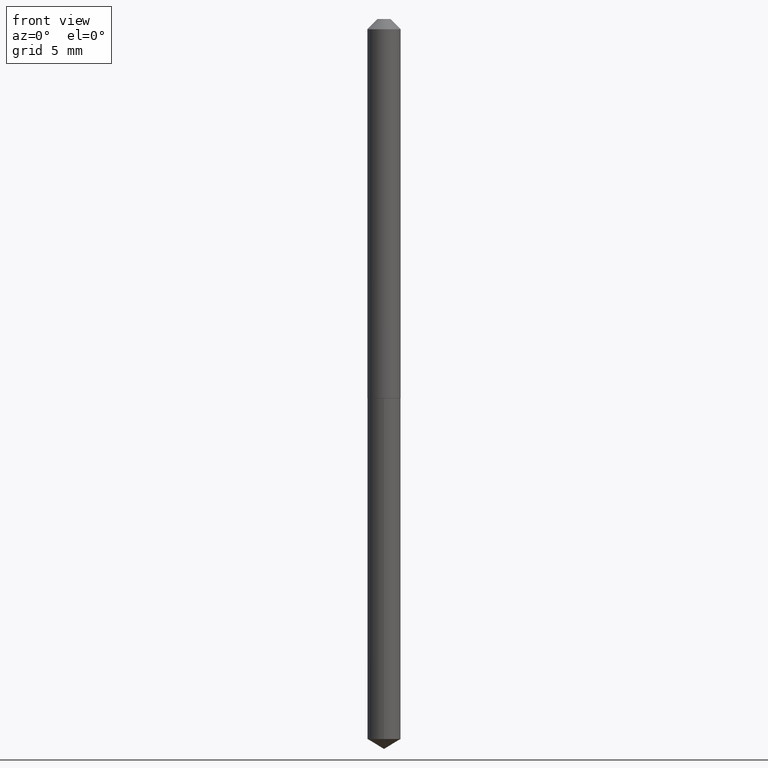
[diagram: clean part render]
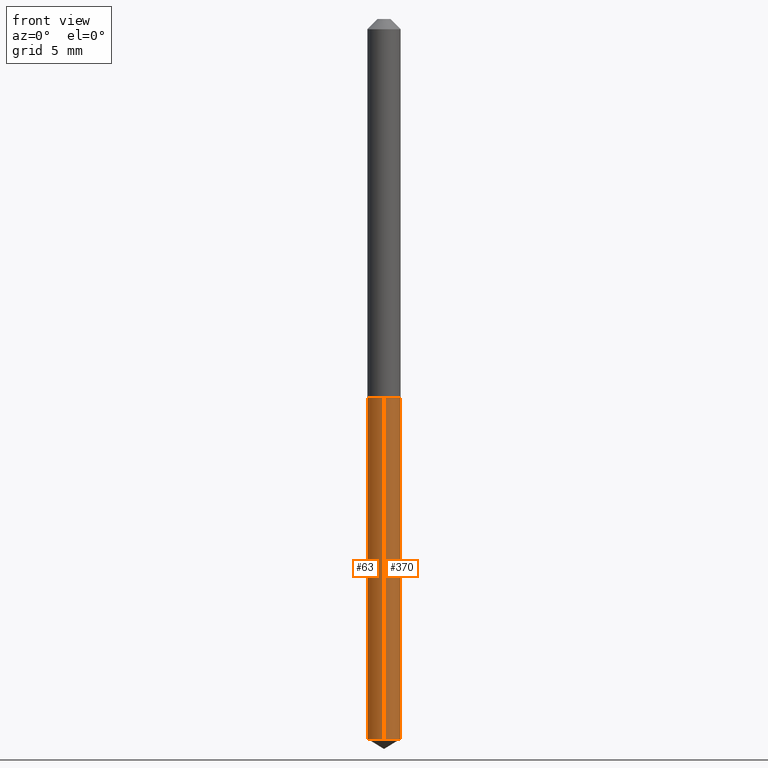
[diagram: same view with one multi-face feature highlighted, each face labeled with its STEP entity id]
A machine part, front view. The highlighted faces form ONE feature: a constant-radius fillet chain: 2 tangent blend faces with common blend radius 1.3005 mm. The faces share edges in the B-rep.
Their STEP definitions:
[1] entity #63 (Cylinder):
#1 = DIRECTION ( 'NONE',  ( -2.445446714774009337E-29, 3.491512975001244888E-15, 1.000000000000000000 ) ) ;
#7 = FACE_OUTER_BOUND ( 'NONE', #379, .T. ) ;
#33 = VECTOR ( 'NONE', #35, 39.37007874015748143 ) ;
#35 = DIRECTION ( 'NONE',  ( -2.445446714774009617E-29, 3.491512975001244888E-15, 1.000000000000000000 ) ) ;
#44 = CARTESIAN_POINT ( 'NONE',  ( -3.575276890975083509E-16, -0.05120000000000407558, -1.165399999999999769 ) ) ;
#51 = VERTEX_POINT ( 'NONE', #388 ) ;
#55 = CARTESIAN_POINT ( 'NONE',  ( 2.849949346728157749E-29, -4.068972352287801446E-15, -1.165399999999999991 ) ) ;
#57 = VECTOR ( 'NONE', #64, 39.37007874015748143 ) ;
#59 = EDGE_CURVE ( 'NONE', #133, #110, #319, .T. ) ;
#63 = ADVANCED_FACE ( 'NONE', ( #7 ), #266, .T. ) ;
#64 = DIRECTION ( 'NONE',  ( -2.445446714774009617E-29, 3.491512975001244888E-15, 1.000000000000000000 ) ) ;
#65 = CARTESIAN_POINT ( 'NONE',  ( 3.637978807091998102E-16, 0.05119999999999593626, -1.165399999999999991 ) ) ;
#94 = CARTESIAN_POINT ( 'NONE',  ( 5.412620839460775275E-29, -7.727854270869542794E-15, -2.213335936305789176 ) ) ;
#105 = VERTEX_POINT ( 'NONE', #44 ) ;
#106 = AXIS2_PLACEMENT_3D ( 'NONE', #55, #181, #294 ) ;
#107 = ORIENTED_EDGE ( 'NONE', *, *, #59, .F. ) ;
#110 = VERTEX_POINT ( 'NONE', #161 ) ;
#114 = DIRECTION ( 'NONE',  ( -6.982962677686265133E-15, -1.000000000000000000, 2.667820306312756424E-15 ) ) ;
#133 = VERTEX_POINT ( 'NONE', #278 ) ;
#147 = AXIS2_PLACEMENT_3D ( 'NONE', #259, #1, #114 ) ;
#161 = CARTESIAN_POINT ( 'NONE',  ( 3.637978807092255468E-16, 0.05119999999999593626, -1.165399999999999991 ) ) ;
#162 = ORIENTED_EDGE ( 'NONE', *, *, #265, .T. ) ;
#177 = LINE ( 'NONE', #293, #33 ) ;
#181 = DIRECTION ( 'NONE',  ( -2.445446714774009337E-29, 3.491512975001244888E-15, 1.000000000000000000 ) ) ;
#188 = EDGE_CURVE ( 'NONE', #110, #105, #320, .T. ) ;
#193 = EDGE_CURVE ( 'NONE', #51, #105, #177, .T. ) ;
#194 = ORIENTED_EDGE ( 'NONE', *, *, #188, .F. ) ;
#227 = ORIENTED_EDGE ( 'NONE', *, *, #193, .T. ) ;
#242 = DIRECTION ( 'NONE',  ( -6.982962677686265133E-15, -1.000000000000000000, 5.335640612625512847E-15 ) ) ;
#259 = CARTESIAN_POINT ( 'NONE',  ( 2.849949346728157749E-29, -4.068972352287801446E-15, -1.165399999999999991 ) ) ;
#265 = EDGE_CURVE ( 'NONE', #133, #51, #304, .T. ) ;
#266 = CYLINDRICAL_SURFACE ( 'NONE', #106, 0.05120000000000000939 ) ;
#278 = CARTESIAN_POINT ( 'NONE',  ( 3.637978807092252510E-16, 0.05119999999999226559, -2.213335936305789620 ) ) ;
#293 = CARTESIAN_POINT ( 'NONE',  ( -3.575276890975083509E-16, -0.05120000000000407558, -1.165399999999999769 ) ) ;
#294 = DIRECTION ( 'NONE',  ( -6.982962677686265133E-15, -1.000000000000000000, 2.667820306312756424E-15 ) ) ;
#304 = CIRCLE ( 'NONE', #374, 0.05120000000000000939 ) ;
#319 = LINE ( 'NONE', #65, #57 ) ;
#320 = CIRCLE ( 'NONE', #147, 0.05120000000000000939 ) ;
#366 = DIRECTION ( 'NONE',  ( -2.445446714774009337E-29, 3.491512975001244888E-15, 1.000000000000000000 ) ) ;
#374 = AXIS2_PLACEMENT_3D ( 'NONE', #94, #366, #242 ) ;
#379 = EDGE_LOOP ( 'NONE', ( #107, #162, #227, #194 ) ) ;
#388 = CARTESIAN_POINT ( 'NONE',  ( -3.575276890974827129E-16, -0.05120000000000772544, -2.213335936305789176 ) ) ;
[2] entity #370 (Cylinder):
#26 = ORIENTED_EDGE ( 'NONE', *, *, #385, .T. ) ;
#32 = DIRECTION ( 'NONE',  ( -2.445446714774009337E-29, 3.491512975001244888E-15, 1.000000000000000000 ) ) ;
#33 = VECTOR ( 'NONE', #35, 39.37007874015748143 ) ;
#35 = DIRECTION ( 'NONE',  ( -2.445446714774009617E-29, 3.491512975001244888E-15, 1.000000000000000000 ) ) ;
#39 = DIRECTION ( 'NONE',  ( -2.445446714774009337E-29, 3.491512975001244888E-15, 1.000000000000000000 ) ) ;
#44 = CARTESIAN_POINT ( 'NONE',  ( -3.575276890975083509E-16, -0.05120000000000407558, -1.165399999999999769 ) ) ;
#46 = AXIS2_PLACEMENT_3D ( 'NONE', #206, #202, #325 ) ;
#49 = ORIENTED_EDGE ( 'NONE', *, *, #104, .F. ) ;
#51 = VERTEX_POINT ( 'NONE', #388 ) ;
#57 = VECTOR ( 'NONE', #64, 39.37007874015748143 ) ;
#59 = EDGE_CURVE ( 'NONE', #133, #110, #319, .T. ) ;
#64 = DIRECTION ( 'NONE',  ( -2.445446714774009617E-29, 3.491512975001244888E-15, 1.000000000000000000 ) ) ;
#65 = CARTESIAN_POINT ( 'NONE',  ( 3.637978807091998102E-16, 0.05119999999999593626, -1.165399999999999991 ) ) ;
#80 = EDGE_LOOP ( 'NONE', ( #26, #249, #49, #349 ) ) ;
#95 = CIRCLE ( 'NONE', #316, 0.05120000000000000939 ) ;
#96 = DIRECTION ( 'NONE',  ( -6.982962677686265133E-15, -1.000000000000000000, 5.335640612625512847E-15 ) ) ;
#104 = EDGE_CURVE ( 'NONE', #105, #110, #95, .T. ) ;
#105 = VERTEX_POINT ( 'NONE', #44 ) ;
#110 = VERTEX_POINT ( 'NONE', #161 ) ;
#113 = CYLINDRICAL_SURFACE ( 'NONE', #46, 0.05120000000000000939 ) ;
#129 = AXIS2_PLACEMENT_3D ( 'NONE', #301, #39, #96 ) ;
#133 = VERTEX_POINT ( 'NONE', #278 ) ;
#161 = CARTESIAN_POINT ( 'NONE',  ( 3.637978807092255468E-16, 0.05119999999999593626, -1.165399999999999991 ) ) ;
#163 = DIRECTION ( 'NONE',  ( -6.982962677686265133E-15, -1.000000000000000000, 2.667820306312756424E-15 ) ) ;
#177 = LINE ( 'NONE', #293, #33 ) ;
#193 = EDGE_CURVE ( 'NONE', #51, #105, #177, .T. ) ;
#202 = DIRECTION ( 'NONE',  ( -2.445446714774009337E-29, 3.491512975001244888E-15, 1.000000000000000000 ) ) ;
#206 = CARTESIAN_POINT ( 'NONE',  ( 2.849949346728157749E-29, -4.068972352287801446E-15, -1.165399999999999991 ) ) ;
#234 = CIRCLE ( 'NONE', #129, 0.05120000000000000939 ) ;
#249 = ORIENTED_EDGE ( 'NONE', *, *, #59, .T. ) ;
#278 = CARTESIAN_POINT ( 'NONE',  ( 3.637978807092252510E-16, 0.05119999999999226559, -2.213335936305789620 ) ) ;
#289 = CARTESIAN_POINT ( 'NONE',  ( 2.849949346728157749E-29, -4.068972352287801446E-15, -1.165399999999999991 ) ) ;
#293 = CARTESIAN_POINT ( 'NONE',  ( -3.575276890975083509E-16, -0.05120000000000407558, -1.165399999999999769 ) ) ;
#301 = CARTESIAN_POINT ( 'NONE',  ( 5.412620839460775275E-29, -7.727854270869542794E-15, -2.213335936305789176 ) ) ;
#316 = AXIS2_PLACEMENT_3D ( 'NONE', #289, #32, #163 ) ;
#319 = LINE ( 'NONE', #65, #57 ) ;
#325 = DIRECTION ( 'NONE',  ( -6.982962677686265133E-15, -1.000000000000000000, 2.667820306312756424E-15 ) ) ;
#329 = FACE_OUTER_BOUND ( 'NONE', #80, .T. ) ;
#349 = ORIENTED_EDGE ( 'NONE', *, *, #193, .F. ) ;
#370 = ADVANCED_FACE ( 'NONE', ( #329 ), #113, .T. ) ;
#385 = EDGE_CURVE ( 'NONE', #51, #133, #234, .T. ) ;
#388 = CARTESIAN_POINT ( 'NONE',  ( -3.575276890974827129E-16, -0.05120000000000772544, -2.213335936305789176 ) ) ;